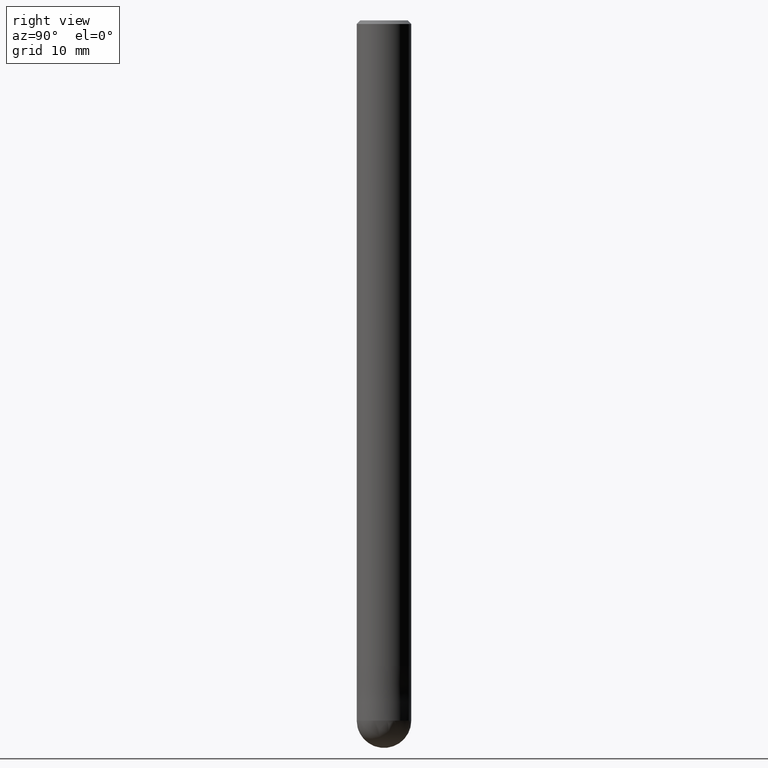
[diagram: clean part render]
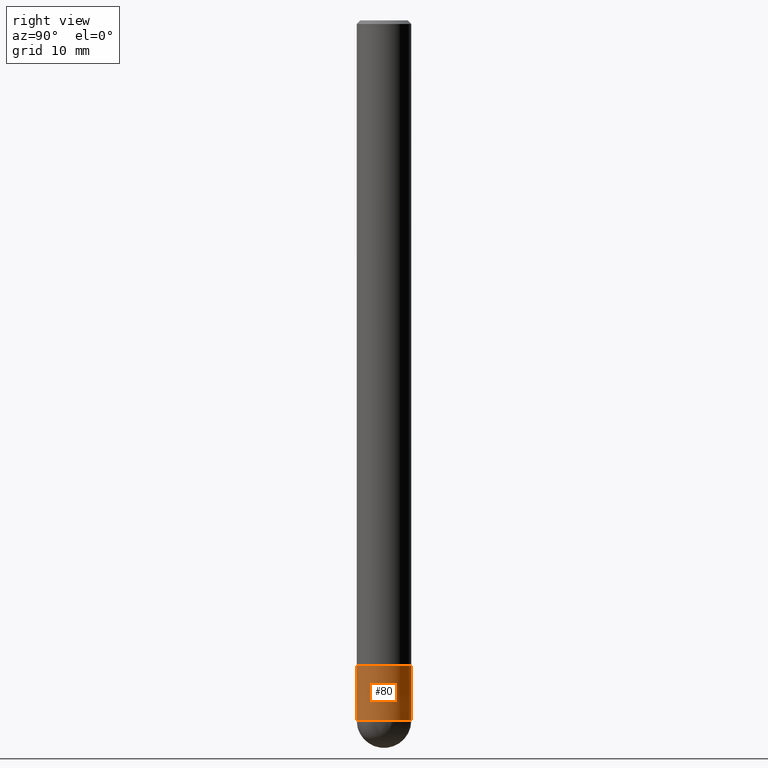
[diagram: same view with one face highlighted and labeled with its STEP entity id]
A machine part, right view. The second image highlights one B-rep face of the part: STEP entity #80.
In plain terms, the highlighted conical surface has half-angle 0.001 deg.
Its self-contained STEP definition (entity closure, byte-faithful):
#64=VERTEX_POINT('',#156);
#80=ADVANCED_FACE('',(#173),#174,.T.);
#84=VERTEX_POINT('',#179);
#96=EDGE_CURVE('',#84,#124,#192,.T.);
#102=EDGE_CURVE('',#64,#84,#200,.T.);
#112=EDGE_CURVE('',#64,#136,#213,.T.);
#124=VERTEX_POINT('',#227);
#134=EDGE_CURVE('',#124,#136,#237,.T.);
#136=VERTEX_POINT('',#239);
#156=CARTESIAN_POINT('',(0.0,2.9999,-71.0));
#173=FACE_OUTER_BOUND('',#269,.T.);
#174=CONICAL_SURFACE('',#270,2.99995,1.66666666652326E-005);
#179=CARTESIAN_POINT('',(0.0,3.0,-77.0));
#192=CIRCLE('',#294,3.0);
#200=LINE('',#303,#304);
#213=CIRCLE('',#321,2.9999);
#227=CARTESIAN_POINT('',(3.67381906146713E-016,-3.0,-77.0));
#237=LINE('',#351,#352);
#239=CARTESIAN_POINT('',(3.67369660083175E-016,-2.9999,-71.0));
#269=EDGE_LOOP('',(#372,#373,#374,#375));
#270=AXIS2_PLACEMENT_3D('',#376,#377,#378);
#294=AXIS2_PLACEMENT_3D('',#405,#406,#407);
#303=CARTESIAN_POINT('',(-3.67375783114944E-016,2.99995,-74.0));
#304=VECTOR('',#422,1.0);
#321=AXIS2_PLACEMENT_3D('',#443,#444,#445);
#351=CARTESIAN_POINT('',(3.67375783114944E-016,-2.99995,-74.0));
#352=VECTOR('',#469,1.0);
#372=ORIENTED_EDGE('',*,*,#102,.F.);
#373=ORIENTED_EDGE('',*,*,#112,.T.);
#374=ORIENTED_EDGE('',*,*,#134,.F.);
#375=ORIENTED_EDGE('',*,*,#96,.F.);
#376=CARTESIAN_POINT('',(0.0,0.0,-74.0));
#377=DIRECTION('',(0.0,-0.0,-1.0));
#378=DIRECTION('',(0.0,1.0,0.0));
#405=CARTESIAN_POINT('',(0.0,0.0,-77.0));
#406=DIRECTION('',(0.0,0.0,-1.0));
#407=DIRECTION('',(0.0,1.0,0.0));
#422=DIRECTION('',(-2.04101058943386E-021,1.6666666664461E-005,-0.999999999861111));
#443=CARTESIAN_POINT('',(0.0,0.0,-71.0));
#444=DIRECTION('',(0.0,0.0,-1.0));
#445=DIRECTION('',(0.0,1.0,0.0));
#469=DIRECTION('',(-2.04101058943386E-021,1.6666666664461E-005,0.999999999861111));